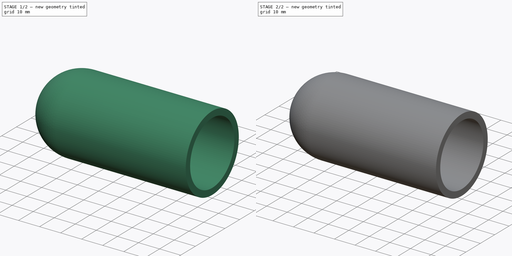
[diagram: build sequence overview — one tinted view per stage of 2, left to right]
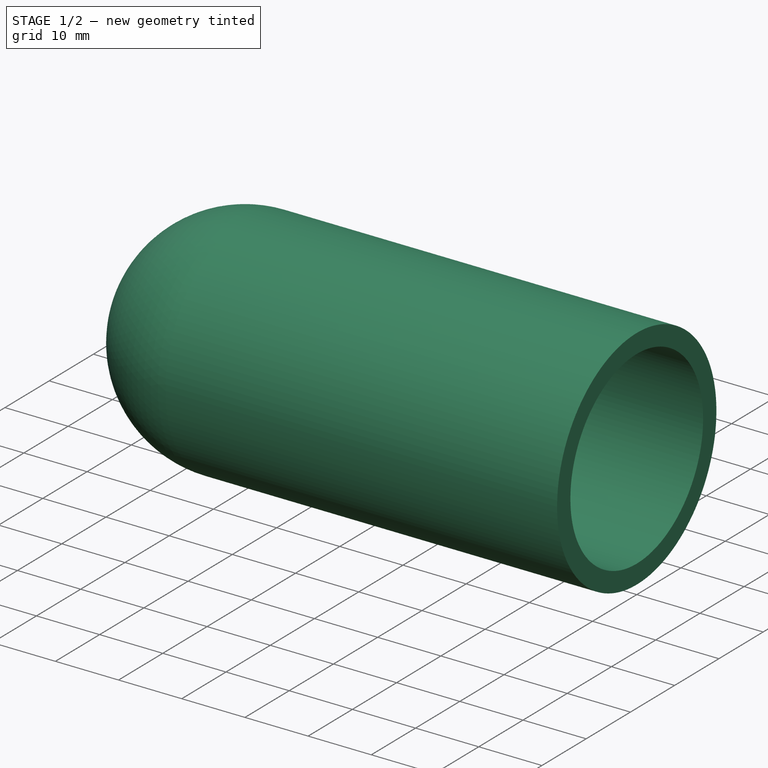
[diagram: stage 1 of 2 — iso view after this stage's code; geometry added in this stage tinted green]
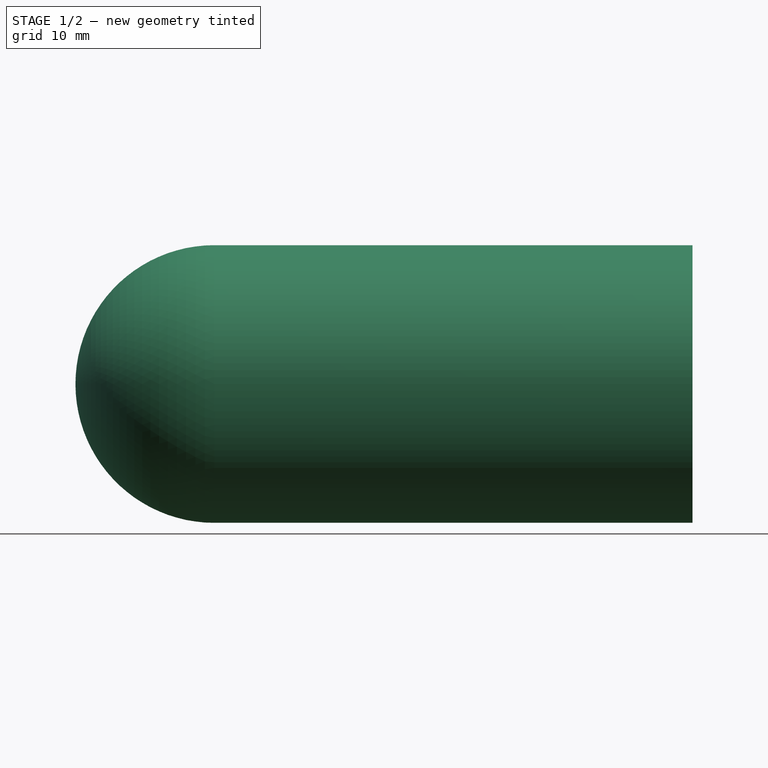
[diagram: stage 1 of 2 — front view after this stage's code; geometry added in this stage tinted green]
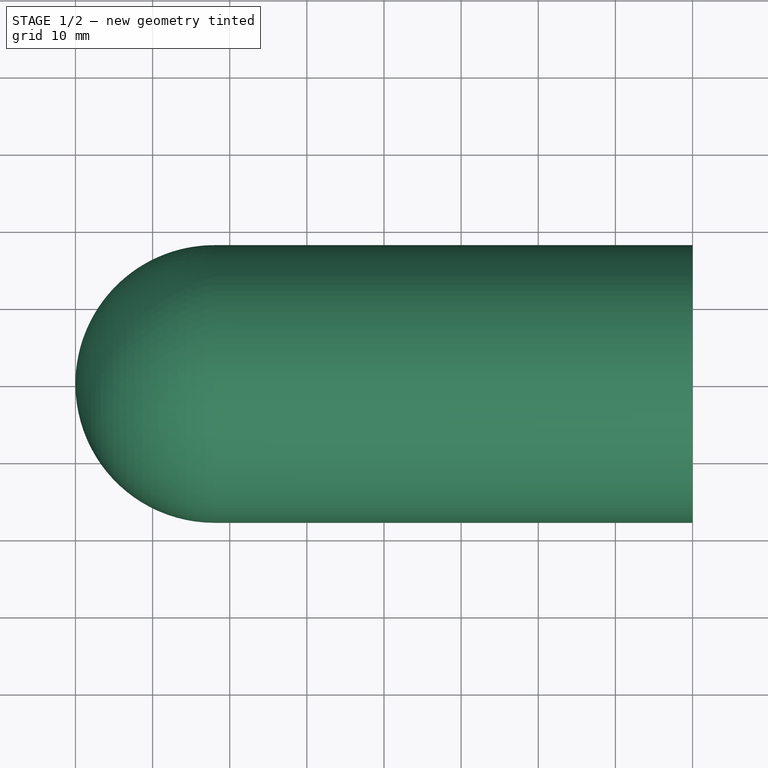
[diagram: stage 1 of 2 — top view after this stage's code; geometry added in this stage tinted green]
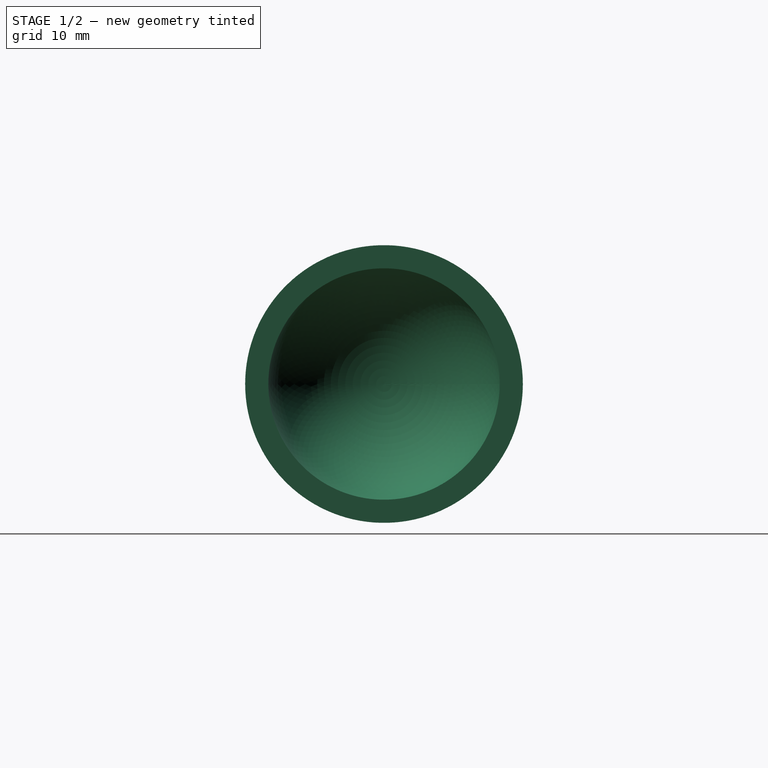
[diagram: stage 1 of 2 — right view after this stage's code; geometry added in this stage tinted green]
FCSTD DOCUMENT  (FreeCAD 0.19R)
Label: cap
License: All rights reserved
LicenseURL: http://en.wikipedia.org/wiki/All_rights_reserved
objects: Sketcher::SketchObject×2, PartDesign::Revolution×2, PartDesign::Body×1
note: 7 computed .brp shape members not serialized (recipe doc carries the construction recipe); baked Part::Feature solids carry a one-line shape summary decoded from their .brp

FEATURE [Sketcher::SketchObject] Sketch
  MapMode = 5
  Support = -> [XY_Plane]
  sketch-geometry (6):
    g0: LineSegment StartX=18 StartY=18 StartZ=0 EndX=80 EndY=18 EndZ=0
    g1: LineSegment StartX=18 StartY=15 StartZ=0 EndX=80 EndY=15 EndZ=0
    g2: LineSegment StartX=80 StartY=18 StartZ=0 EndX=80 EndY=15 EndZ=0
    g3: ArcOfCircle CenterX=18 CenterY=0 CenterZ=0 NormalX=0 NormalY=0 NormalZ=1 AngleXU=0 Radius=15 StartAngle=1.57079 EndAngle=3.14159
    g4: ArcOfCircle CenterX=18 CenterY=0 CenterZ=0 NormalX=0 NormalY=0 NormalZ=1 AngleXU=0 Radius=18 StartAngle=1.5708 EndAngle=3.14159
    g5: LineSegment StartX=0 StartY=2.2e-15 StartZ=0 EndX=3 EndY=2.2e-15 EndZ=0
  constraints (18):
    c: Horizontal(g0)
    c: Horizontal(g1)
    c: Coincident(g2,g0)
    c: Coincident(g2,g1)
    c: Vertical(g2)
    c: DistanceX(g-1,g1) = 80
    c: DistanceY(g2,g2) = 3
    c: PointOnObject(g3,g-1)
    c: Coincident(g3,g1)
    c: Coincident(g4,g3)
    c: PointOnObject(g4,g-1)
    c: Tangent(g4,g0) = 1.5708
    c: Tangent(g3,g1)
    c: Coincident(g5,g4)
    c: Coincident(g5,g3)
    c: Horizontal(g5)
    c: Distance(g3,g1) = 15
    c: PointOnObject(g4,g-2)
FEATURE [PartDesign::Revolution] Revolution
  AllowMultiFace = false
  Angle = 360
  Axis = (1,0,0)
  Base = (0,0,0)
  Profile = -> Sketch
  ReferenceAxis = -> X_Axis
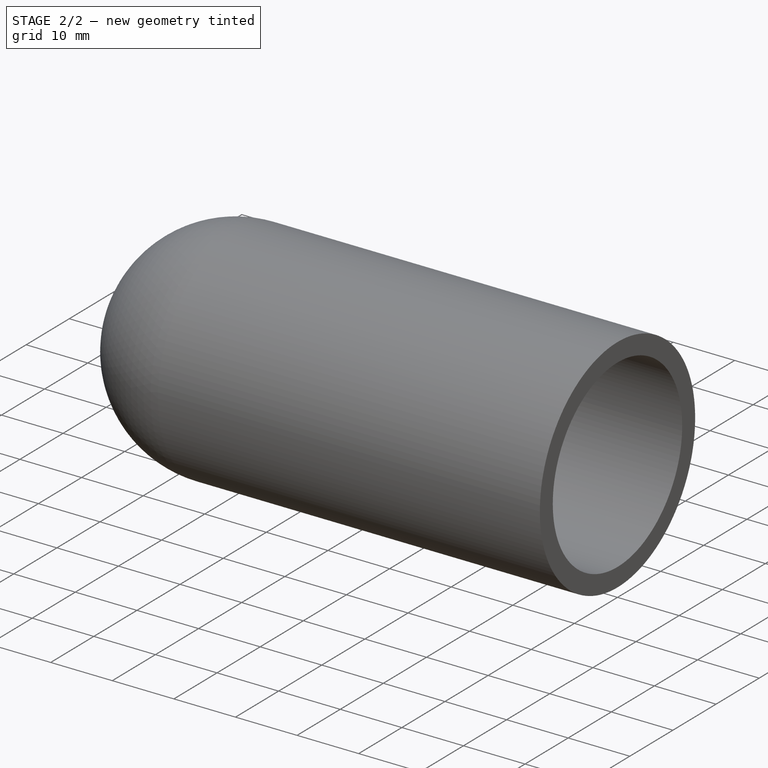
[diagram: stage 2 of 2 — iso view after this stage's code; geometry added in this stage tinted green]
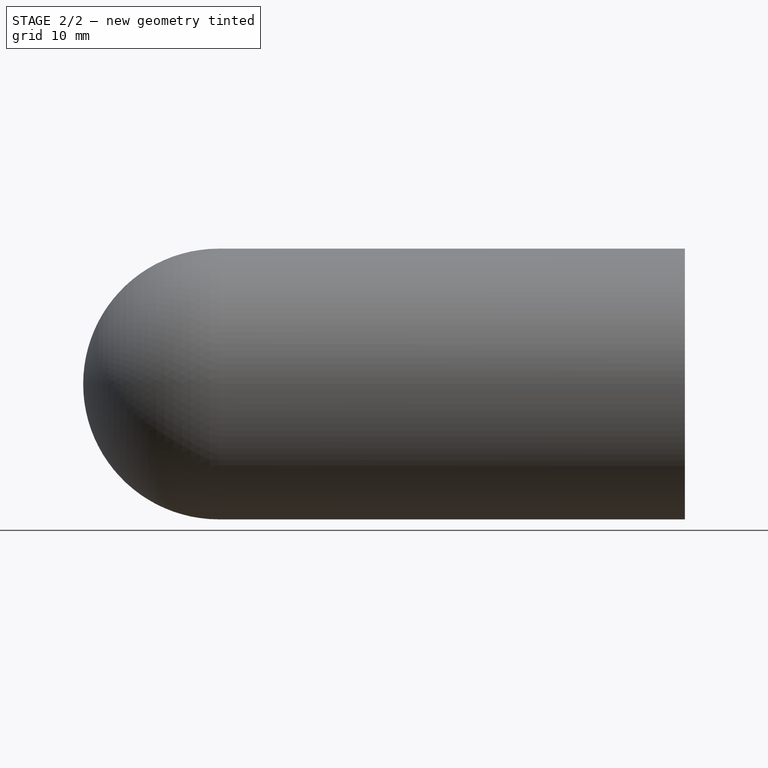
[diagram: stage 2 of 2 — front view after this stage's code; geometry added in this stage tinted green]
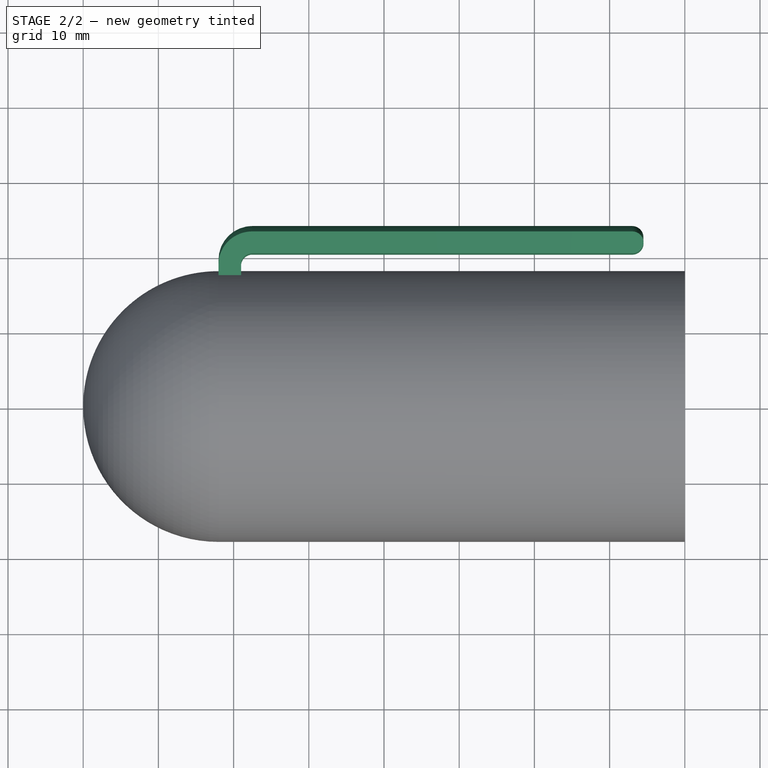
[diagram: stage 2 of 2 — top view after this stage's code; geometry added in this stage tinted green]
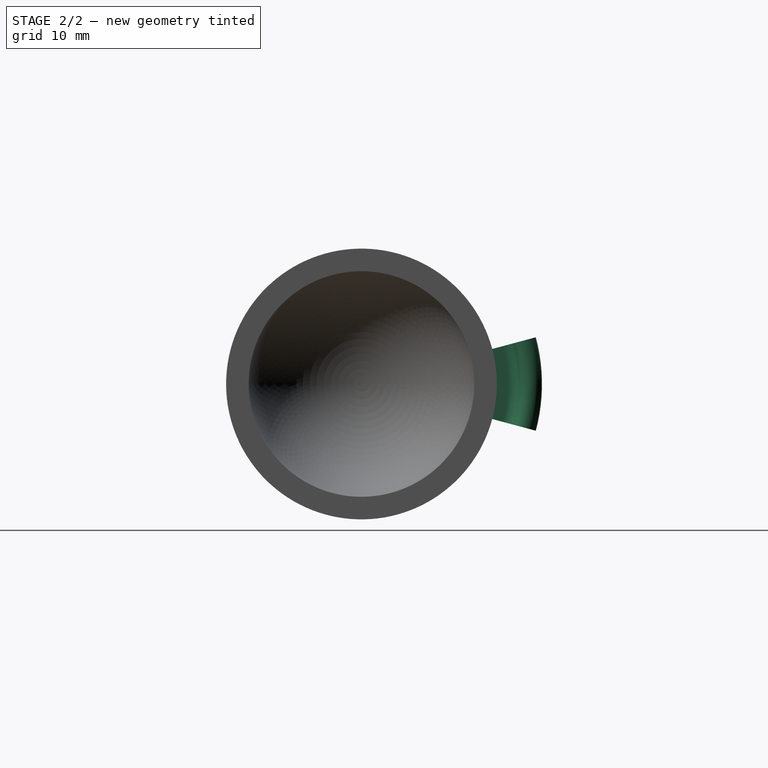
[diagram: stage 2 of 2 — right view after this stage's code; geometry added in this stage tinted green]
FEATURE [Sketcher::SketchObject] Sketch001
  MapMode = 5
  Support = -> [XY_Plane]
  sketch-geometry (8):
    g0: LineSegment StartX=22.5 StartY=24 StartZ=0 EndX=73 EndY=24 EndZ=0
    g1: LineSegment StartX=73 StartY=21 StartZ=0 EndX=22.5 EndY=21 EndZ=0
    g2: LineSegment StartX=21 StartY=19.5 StartZ=0 EndX=21 EndY=18 EndZ=0
    g3: LineSegment StartX=18 StartY=19.5 StartZ=0 EndX=18 EndY=18 EndZ=0
    g4: LineSegment StartX=21 StartY=18 StartZ=0 EndX=18 EndY=18 EndZ=0
    g5: ArcOfCircle CenterX=73 CenterY=22.5 CenterZ=0 NormalX=0 NormalY=0 NormalZ=1 AngleXU=0 Radius=1.5 StartAngle=4.71239 EndAngle=7.85398
    g6: ArcOfCircle CenterX=22.5 CenterY=19.5 CenterZ=0 NormalX=0 NormalY=0 NormalZ=1 AngleXU=0 Radius=4.5 StartAngle=1.5708 EndAngle=3.14159
    g7: ArcOfCircle CenterX=22.5 CenterY=19.5 CenterZ=0 NormalX=0 NormalY=0 NormalZ=1 AngleXU=0 Radius=1.5 StartAngle=1.5708 EndAngle=3.14159
  constraints (23):
    c: Horizontal(g0)
    c: Horizontal(g1)
    c: Vertical(g2)
    c: Vertical(g3)
    c: Coincident(g4,g2)
    c: Coincident(g4,g3)
    c: Horizontal(g4)
    c: Coincident(g5,g0)
    c: Coincident(g5,g1)
    c: Tangent(g0,g5)
    c: Tangent(g5,g1)
    c: Tangent(g3,g6) = -1.5708
    c: Tangent(g0,g6) = 1.5708
    c: Tangent(g2,g7) = -1.5708
    c: Tangent(g1,g7) = -1.5708
    c: Radius(g7) = 1.5
    c: Radius(g6) = 4.5
    c: DistanceX(g4,g4) = 3
    c: DistanceY(g1,g0) = 3
    c: Distance(g1,g4) = 3
    c: DistanceX(g3,g0) = 55
    c: DistanceX(g-1,g3) = 18
    c: DistanceY(g-1,g3) = 18
FEATURE [PartDesign::Revolution] Revolution001
  AllowMultiFace = false
  Angle = 30
  Axis = (1,0,0)
  Base = (0,0,0)
  BaseFeature = -> Revolution
  Midplane = true
  Profile = -> Sketch001
  ReferenceAxis = -> X_Axis
  Reversed = true
FEATURE [PartDesign::Body] Body
  Group = -> [Sketch,Revolution,Sketch001,Revolution001]
  Origin = -> Origin
  Tip = -> Revolution001
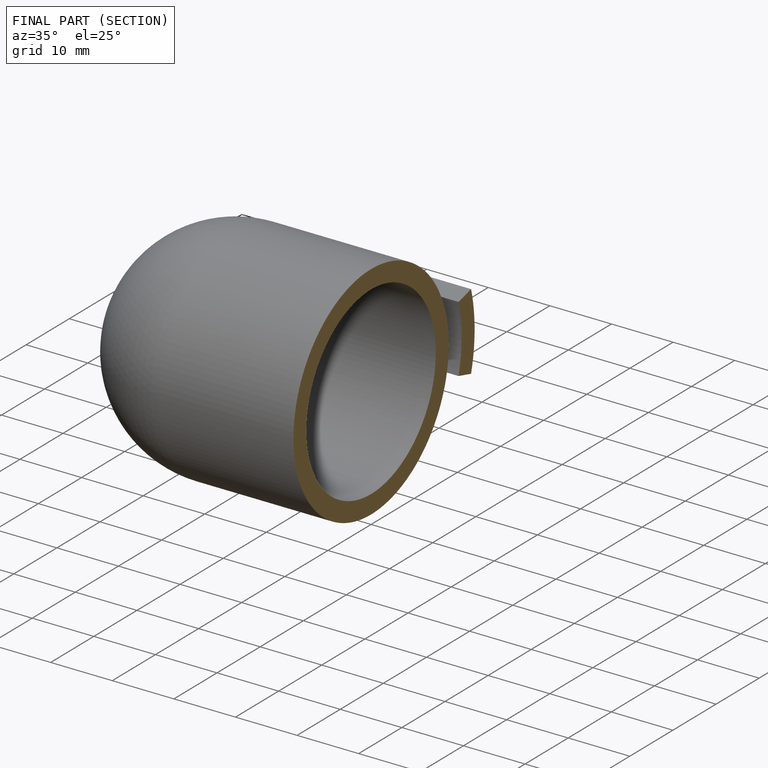
[diagram: finished part — half-section view (interior)]
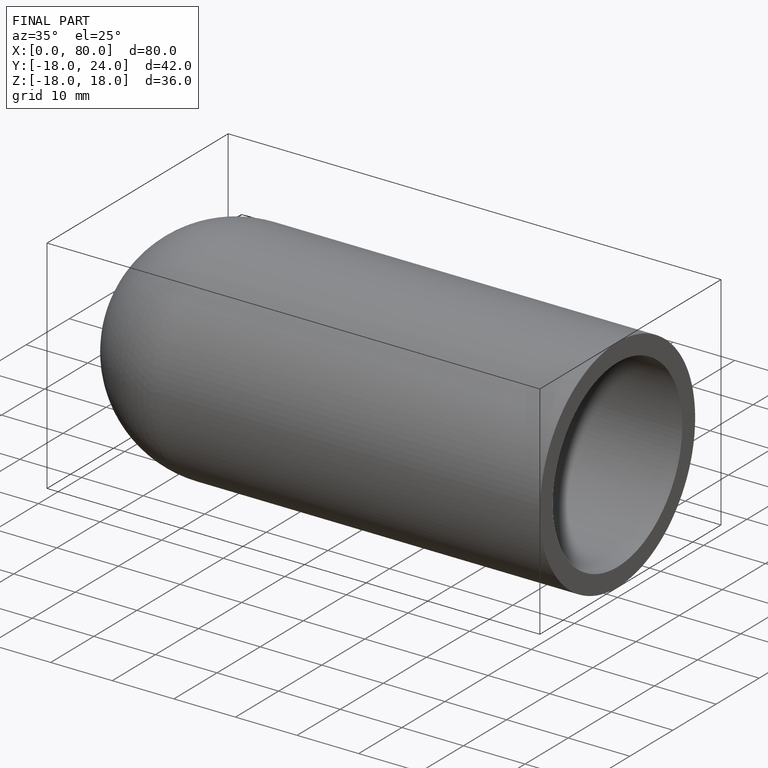
[diagram: finished part — iso view with bounding-box wireframe]
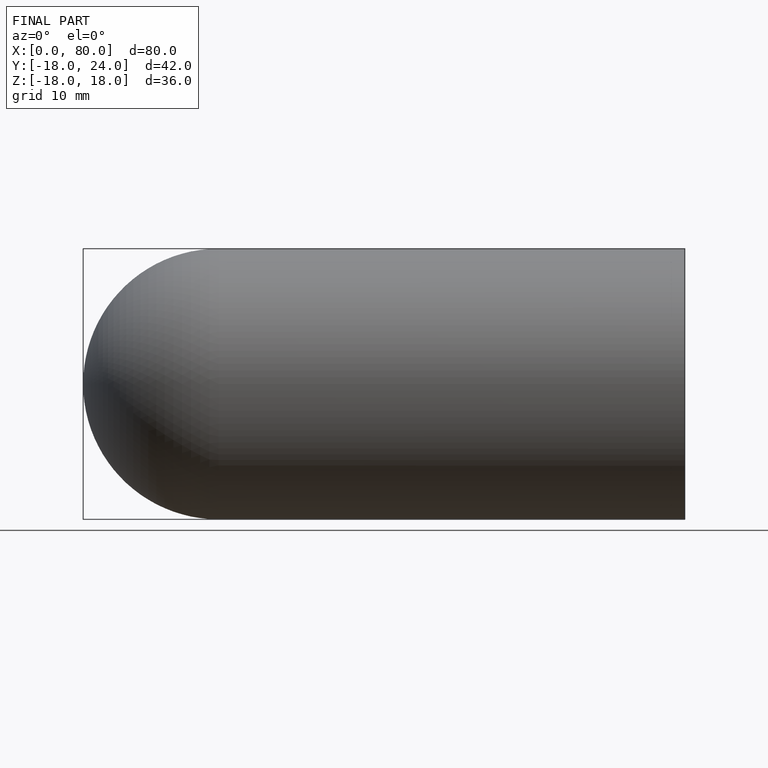
[diagram: finished part — front view with bounding-box wireframe]
